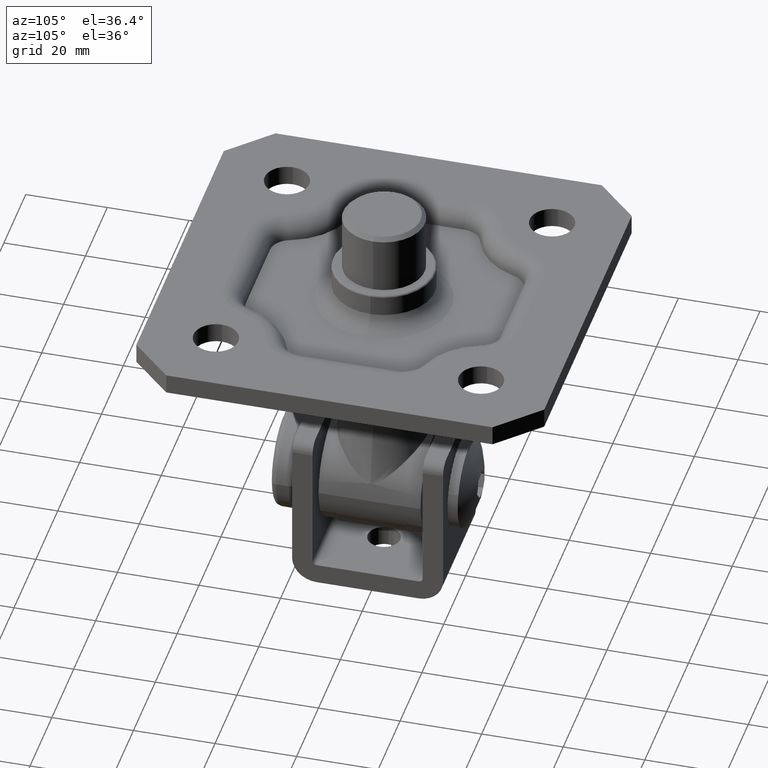
[diagram: clean part render]
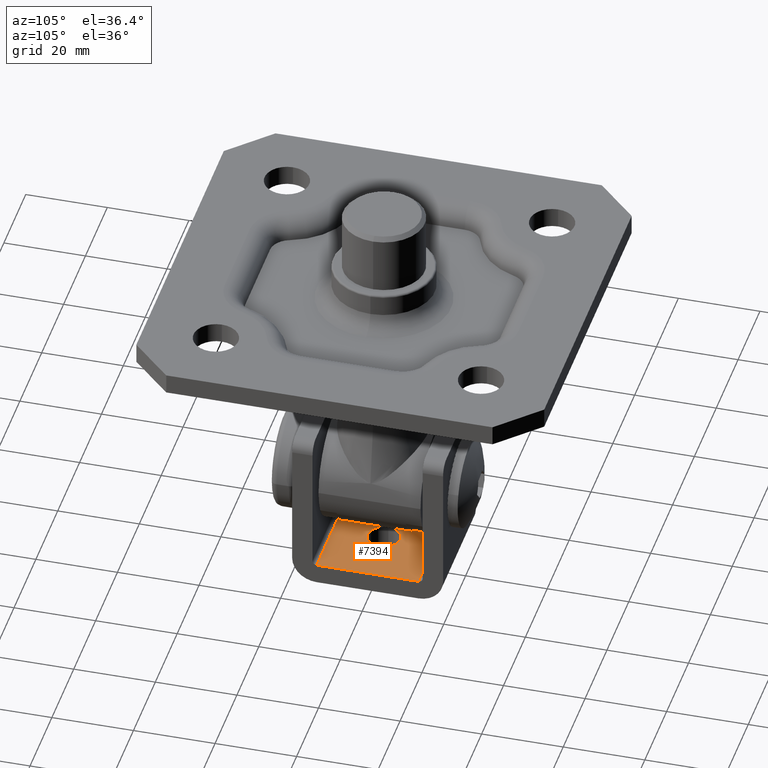
[diagram: same view with one face highlighted and labeled with its STEP entity id]
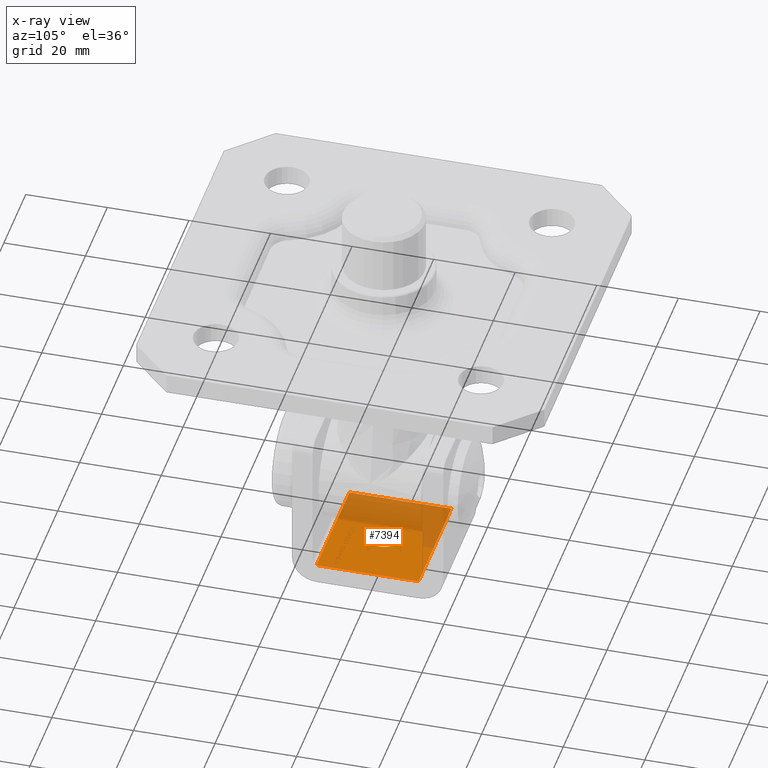
[diagram: x-ray of the same camera — body ghosted, the highlighted face saturated]
A machine part, auxiliary view. The second image highlights one B-rep face of the part: STEP entity #7394.
The next image is the same camera in x-ray: the body ghosted, the highlighted face saturated — about 41% of this face is hidden behind the body in this view.
In plain terms, the highlighted planar face has unit normal (0, -0, -1).
Its self-contained STEP definition (entity closure, byte-faithful):
#336 = FACE_BOUND ( 'NONE', #18933, .T. ) ;
#346 = DIRECTION ( 'NONE',  ( 0.0000000000000000000, -1.387778780781445900E-016, -1.000000000000000000 ) ) ;
#858 = CARTESIAN_POINT ( 'NONE',  ( 15.00000000000000000, -12.49999999999999600, -18.00000000000000000 ) ) ;
#1513 = VECTOR ( 'NONE', #12651, 1000.000000000000000 ) ;
#2620 = CIRCLE ( 'NONE', #12625, 4.000000000000000000 ) ;
#2657 = LINE ( 'NONE', #21926, #11709 ) ;
#2892 = ORIENTED_EDGE ( 'NONE', *, *, #3619, .T. ) ;
#3064 = VERTEX_POINT ( 'NONE', #18857 ) ;
#3103 = VERTEX_POINT ( 'NONE', #858 ) ;
#3619 = EDGE_CURVE ( 'NONE', #16615, #7406, #2620, .T. ) ;
#4268 = CARTESIAN_POINT ( 'NONE',  ( 15.00000000000000000, 12.49999999999999800, -18.00000000000000400 ) ) ;
#4343 = ORIENTED_EDGE ( 'NONE', *, *, #11489, .T. ) ;
#4355 = VECTOR ( 'NONE', #13095, 1000.000000000000000 ) ;
#4929 = EDGE_CURVE ( 'NONE', #14419, #3064, #2657, .T. ) ;
#5013 = DIRECTION ( 'NONE',  ( 0.0000000000000000000, -1.387778780781445900E-016, -1.000000000000000000 ) ) ;
#5269 = ORIENTED_EDGE ( 'NONE', *, *, #4929, .T. ) ;
#6289 = LINE ( 'NONE', #14395, #1513 ) ;
#6791 = CARTESIAN_POINT ( 'NONE',  ( 15.00000000000000000, 12.49999999999999800, -18.00000000000000400 ) ) ;
#7115 = VERTEX_POINT ( 'NONE', #6791 ) ;
#7394 = ADVANCED_FACE ( 'NONE', ( #336, #13876 ), #16619, .F. ) ;
#7406 = VERTEX_POINT ( 'NONE', #18436 ) ;
#7466 = CARTESIAN_POINT ( 'NONE',  ( 15.00000000000000000, 12.49999999999999800, -18.00000000000000400 ) ) ;
#8192 = DIRECTION ( 'NONE',  ( 0.0000000000000000000, -1.387778780781445900E-016, -1.000000000000000000 ) ) ;
#10008 = CARTESIAN_POINT ( 'NONE',  ( 0.0000000000000000000, 0.0000000000000000000, -18.00000000000000400 ) ) ;
#10839 = ORIENTED_EDGE ( 'NONE', *, *, #13494, .T. ) ;
#11119 = EDGE_CURVE ( 'NONE', #7115, #3103, #21425, .T. ) ;
#11489 = EDGE_CURVE ( 'NONE', #7406, #16615, #21120, .T. ) ;
#11709 = VECTOR ( 'NONE', #16509, 1000.000000000000000 ) ;
#11708 = DIRECTION ( 'NONE',  ( 0.0000000000000000000, -1.000000000000000000, 1.387778780781445900E-016 ) ) ;
#12474 = ORIENTED_EDGE ( 'NONE', *, *, #17311, .F. ) ;
#12625 = AXIS2_PLACEMENT_3D ( 'NONE', #10008, #8192, #13516 ) ;
#12651 = DIRECTION ( 'NONE',  ( -1.000000000000000000, -0.0000000000000000000, -0.0000000000000000000 ) ) ;
#12712 = AXIS2_PLACEMENT_3D ( 'NONE', #13006, #346, #16698 ) ;
#13006 = CARTESIAN_POINT ( 'NONE',  ( 15.00000000000000000, 12.49999999999999800, -18.00000000000000400 ) ) ;
#13095 = DIRECTION ( 'NONE',  ( -1.000000000000000000, -0.0000000000000000000, -0.0000000000000000000 ) ) ;
#13132 = AXIS2_PLACEMENT_3D ( 'NONE', #19660, #5013, #17555 ) ;
#13494 = EDGE_CURVE ( 'NONE', #7115, #14419, #13971, .T. ) ;
#13516 = DIRECTION ( 'NONE',  ( 0.0000000000000000000, 1.000000000000000000, 0.0000000000000000000 ) ) ;
#13524 = CARTESIAN_POINT ( 'NONE',  ( -15.00000000000000000, 12.49999999999999800, -18.00000000000000400 ) ) ;
#13876 = FACE_OUTER_BOUND ( 'NONE', #18099, .T. ) ;
#13971 = LINE ( 'NONE', #7466, #4355 ) ;
#14395 = CARTESIAN_POINT ( 'NONE',  ( 15.00000000000000000, -12.49999999999999600, -18.00000000000000000 ) ) ;
#14419 = VERTEX_POINT ( 'NONE', #13524 ) ;
#14614 = VECTOR ( 'NONE', #11708, 1000.000000000000000 ) ;
#16509 = DIRECTION ( 'NONE',  ( 0.0000000000000000000, -1.000000000000000000, 1.387778780781445900E-016 ) ) ;
#16615 = VERTEX_POINT ( 'NONE', #21634 ) ;
#16619 = PLANE ( 'NONE',  #12712 ) ;
#16698 = DIRECTION ( 'NONE',  ( 0.0000000000000000000, 1.000000000000000000, -1.387778780781445900E-016 ) ) ;
#17311 = EDGE_CURVE ( 'NONE', #3103, #3064, #6289, .T. ) ;
#17555 = DIRECTION ( 'NONE',  ( 0.0000000000000000000, 1.000000000000000000, 0.0000000000000000000 ) ) ;
#18099 = EDGE_LOOP ( 'NONE', ( #5269, #12474, #18424, #10839 ) ) ;
#18424 = ORIENTED_EDGE ( 'NONE', *, *, #11119, .F. ) ;
#18436 = CARTESIAN_POINT ( 'NONE',  ( 4.000000000000000000, 4.898587196589412800E-016, -18.00000000000000400 ) ) ;
#18857 = CARTESIAN_POINT ( 'NONE',  ( -15.00000000000000000, -12.49999999999999600, -18.00000000000000000 ) ) ;
#18933 = EDGE_LOOP ( 'NONE', ( #2892, #4343 ) ) ;
#19660 = CARTESIAN_POINT ( 'NONE',  ( 0.0000000000000000000, 0.0000000000000000000, -18.00000000000000400 ) ) ;
#21120 = CIRCLE ( 'NONE', #13132, 4.000000000000000000 ) ;
#21425 = LINE ( 'NONE', #4268, #14614 ) ;
#21634 = CARTESIAN_POINT ( 'NONE',  ( -4.000000000000000000, 0.0000000000000000000, -18.00000000000000400 ) ) ;
#21926 = CARTESIAN_POINT ( 'NONE',  ( -15.00000000000000000, 12.49999999999999800, -18.00000000000000400 ) ) ;